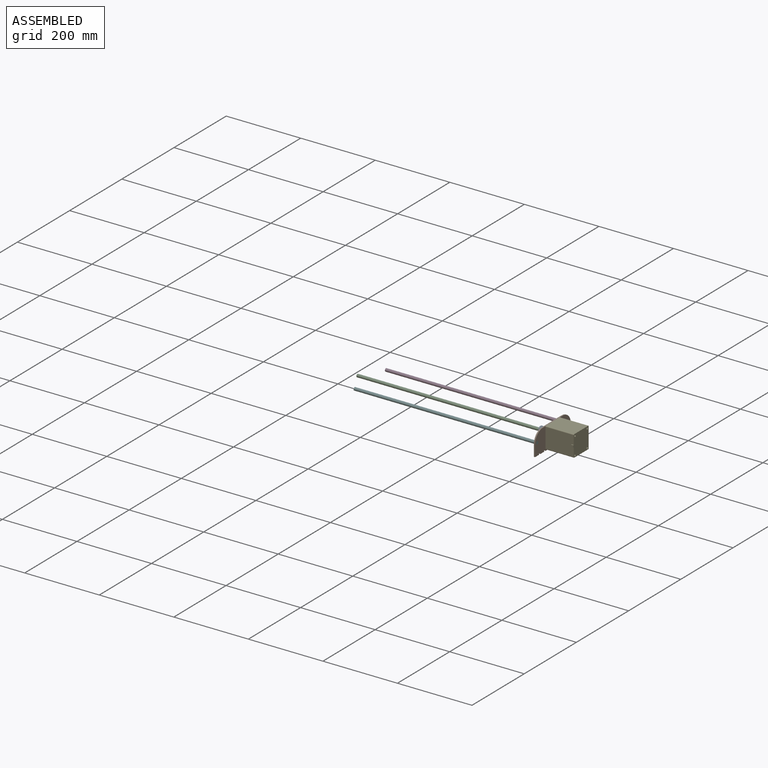
[diagram: assembled view]
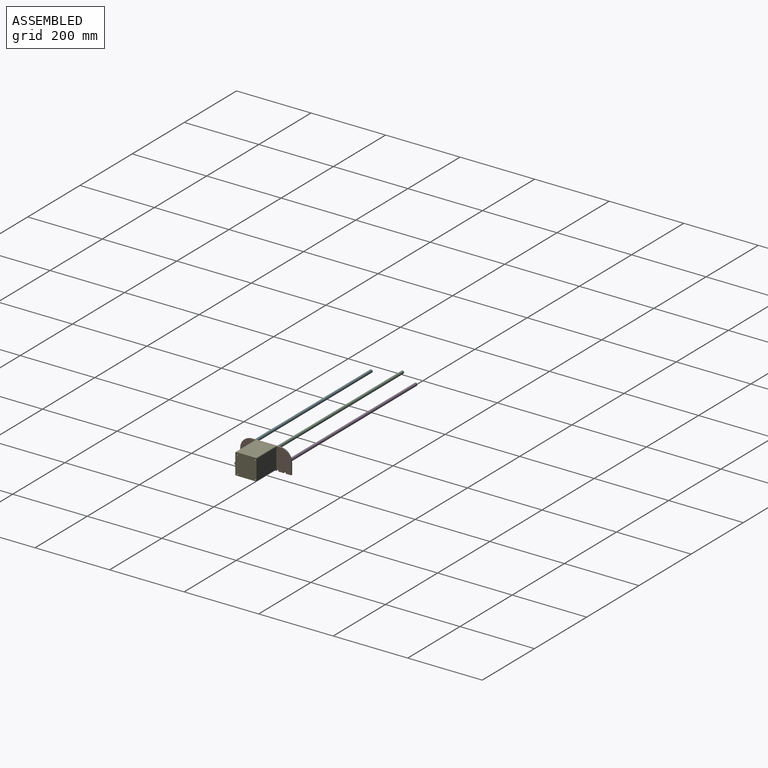
[diagram: assembled view, second angle]
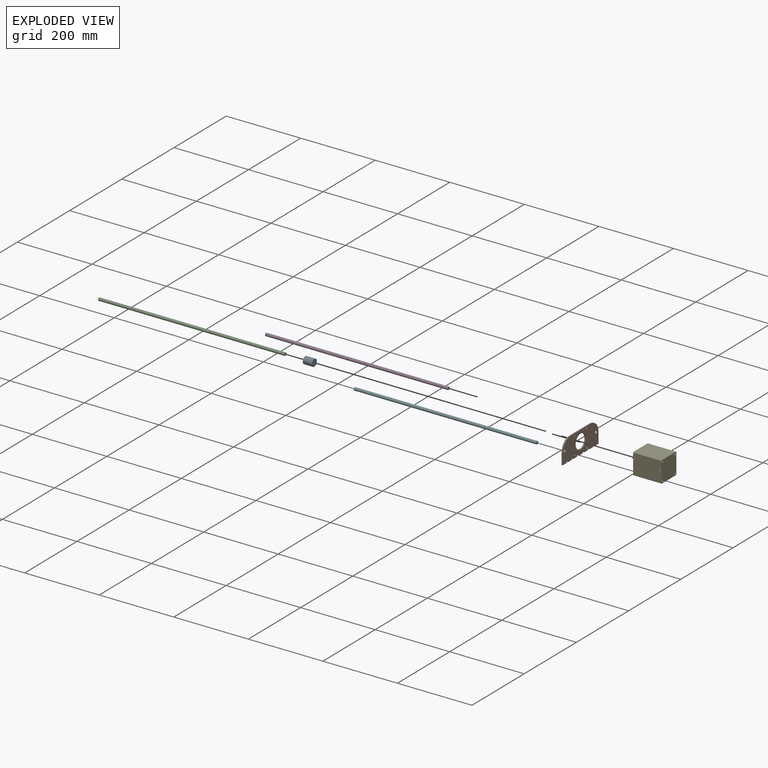
[diagram: exploded view]
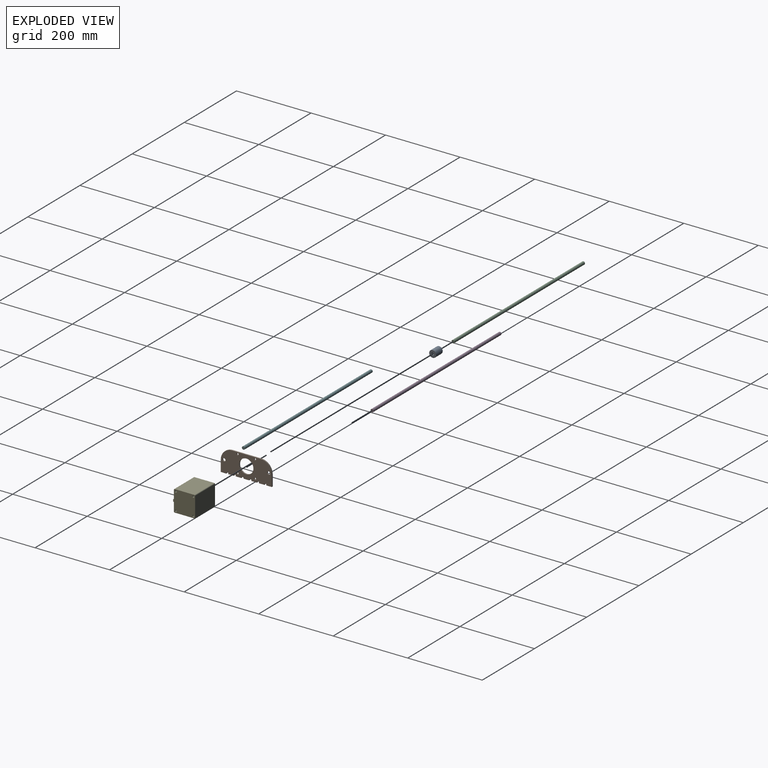
[diagram: exploded view, second angle]
ASSEMBLY  parts=6 mates=5
PART A: 12 faces, bbox 20.6x20.6x25 mm
  f0: cylinder r=9.5mm len=24.6mm, axis (0,0,-1), area 1468.4mm2, adj f10,f11
  f1: plane 18.6x18.6mm, normal (0,0,1), area 235.9mm2, adj f9,f11
  f2: plane 18.6x18.6mm, normal (0,0,-1), area 216.3mm2, adj f7,f10
  f3: cylinder r=3.17mm len=6.6mm, axis (0,0,1), area 131.7mm2, adj f6,f9
  f4: plane 7.6x7.6mm, normal (0,0,-1), area 9.6mm2, adj f6,f8
  f5: cylinder r=4mm len=17.6mm, axis (0,0,-1), area 442.3mm2, adj f7,f8
  f6: torus R=3.38mm, axis (0,0,-1), area 6.4mm2, adj f3,f4
  f7: torus R=4.2mm, axis (0,0,1), area 8mm2, adj f2,f5
  f8: torus R=3.8mm, axis (0,0,-1), area 7.8mm2, adj f4,f5
  f9: torus R=3.38mm, axis (0,0,1), area 6.4mm2, adj f1,f3
  f10: torus R=9.3mm, axis (0,0,1), area 18.6mm2, adj f0,f2
  f11: torus R=9.3mm, axis (0,0,1), area 18.6mm2, adj f0,f1
PART B: 39 faces, bbox 3.2x137x60.2 mm
  f0: plane 3.18x3.18mm, normal (0,1,0), area 10.1mm2, adj f1,f35,f37,f38
  f1: plane 5x3.18mm, normal (0,0,-1), area 15.9mm2, adj f0,f2,f37,f38
  f2: plane 3.18x3.18mm, normal (0,-1,0), area 10.1mm2, adj f1,f3,f37,f38
  f3: plane 15x3.18mm, normal (0,0,-1), area 47.6mm2, adj f2,f4,f37,f38
  f4: plane 3.18x3.18mm, normal (0,1,0), area 10.1mm2, adj f3,f5,f37,f38
  f5: plane 5x3.18mm, normal (0,0,-1), area 15.9mm2, adj f4,f6,f37,f38
  f6: plane 3.18x3.18mm, normal (0,-1,0), area 10.1mm2, adj f5,f7,f37,f38
  f7: plane 15x3.18mm, normal (0,0,-1), area 47.6mm2, adj f6,f8,f37,f38
  f8: plane 30.18x3.18mm, normal (0,1,0), area 95.8mm2, adj f7,f9,f37,f38
  f9: cylinder r=30mm len=30mm, axis (-1,0,0), area 149.6mm2, adj f8,f10,f37,f38
  f10: plane 77x3.18mm, normal (0,0,1), area 244.5mm2, adj f9,f11,f37,f38
  f11: cylinder r=30mm len=30mm, axis (-1,0,0), area 149.6mm2, adj f10,f12,f37,f38
  f12: plane 30.18x3.18mm, normal (0,-1,0), area 95.8mm2, adj f11,f13,f37,f38
  f13: plane 15x3.18mm, normal (0,0,-1), area 47.6mm2, adj f12,f14,f37,f38
  f14: plane 3.18x3.18mm, normal (0,1,0), area 10.1mm2, adj f13,f15,f37,f38
  f15: plane 5x3.18mm, normal (0,0,-1), area 15.9mm2, adj f14,f16,f37,f38
  f16: plane 3.18x3.18mm, normal (0,-1,0), area 10.1mm2, adj f15,f17,f37,f38
  f17: plane 15x3.18mm, normal (0,0,-1), area 47.6mm2, adj f16,f18,f37,f38
  f18: plane 3.18x3.18mm, normal (0,1,0), area 10.1mm2, adj f17,f19,f37,f38
  f19: plane 5x3.18mm, normal (0,0,-1), area 15.9mm2, adj f18,f20,f37,f38
  f20: plane 3.18x3.18mm, normal (0,-1,0), area 10.1mm2, adj f19,f21,f37,f38
  f21: plane 15x3.18mm, normal (0,0,-1), area 47.6mm2, adj f20,f22,f37,f38
  f22: plane 3.18x3.18mm, normal (0,1,0), area 10.1mm2, adj f21,f23,f37,f38
  f23: plane 6x3.18mm, normal (0,0,-1), area 19mm2, adj f22,f24,f37,f38
  f24: plane 3.18x3.18mm, normal (0,-1,0), area 10.1mm2, adj f23,f25,f37,f38
  f25: plane 15x3.18mm, normal (0,0,-1), area 47.6mm2, adj f24,f26,f37,f38
  f26: plane 3.18x3.18mm, normal (0,1,0), area 10.1mm2, adj f25,f27,f37,f38
  f27: plane 6x3.18mm, normal (0,0,-1), area 19mm2, adj f26,f28,f37,f38
  f28: plane 3.18x3.18mm, normal (0,-1,0), area 10.1mm2, adj f27,f35,f37,f38
  f29: cylinder r=2.55mm len=5.1mm, axis (-1,0,0), area 50.9mm2, adj f37,f38
  f30: cylinder r=2.55mm len=5.1mm, axis (-1,0,0), area 50.9mm2, adj f37,f38
  f31: cylinder r=2.55mm len=5.1mm, axis (-1,0,0), area 50.9mm2, adj f37,f38
  f32: cylinder r=2.55mm len=5.1mm, axis (-1,0,0), area 50.9mm2, adj f37,f38
  f33: cylinder r=4mm len=8mm, axis (-1,0,0), area 79.8mm2, adj f37,f38
  f34: cylinder r=4mm len=8mm, axis (-1,0,0), area 79.8mm2, adj f37,f38
  f35: plane 15x3.18mm, normal (0,0,-1), area 47.6mm2, adj f0,f28,f37,f38
  f36: cylinder r=19.05mm len=38.1mm, axis (-1,0,0), area 380mm2, adj f37,f38
  f37: plane 137x60.18mm, normal (1,0,0), area 6433.8mm2, adj f0,f1,f2,f3,f4,f5,f6,f7
  f38: plane 137x60.18mm, normal (-1,0,0), area 6433.8mm2, adj f0,f1,f2,f3,f4,f5,f6,f7
PART C: 3 faces, bbox 8x8x500 mm
  f0: cylinder r=4mm len=500mm, axis (0,0,-1), area 12566.4mm2, adj f1,f2
  f1: plane 8x8mm, normal (0,0,1), area 50.3mm2, adj f0
  f2: plane 8x8mm, normal (0,0,-1), area 50.3mm2, adj f0
PART D: 3 faces, bbox 8x8x490 mm
  f0: cylinder r=4mm len=490mm, axis (0,0,-1), area 12315mm2, adj f1,f2
  f1: plane 8x8mm, normal (0,0,1), area 50.3mm2, adj f0
  f2: plane 8x8mm, normal (0,0,-1), area 50.3mm2, adj f0
PART E: 26 faces, bbox 57x59x97 mm
  f0: plane 76x53mm, normal (0,-1,0), area 3992mm2, adj f1,f8,f12,f13,f22,f23,f24
  f1: cylinder r=2mm len=76mm, axis (0,0,-1), area 238.8mm2, adj f0,f2,f12,f13
  f2: plane 76x53mm, normal (1,0,0), area 4028mm2, adj f1,f3,f12,f13
  f3: cylinder r=2mm len=76mm, axis (0,0,-1), area 238.8mm2, adj f2,f4,f12,f13
  f4: plane 76x53mm, normal (0,1,0), area 4028mm2, adj f3,f5,f12,f13
  f5: cylinder r=2mm len=76mm, axis (0,0,-1), area 238.8mm2, adj f4,f6,f12,f13
  f6: plane 76x53mm, normal (-1,0,0), area 4028mm2, adj f5,f8,f12,f13
  f7: cylinder r=2.55mm len=76mm, axis (0,0,-1), area 1217.7mm2, adj f12,f13
  f8: cylinder r=2mm len=76mm, axis (0,0,-1), area 238.8mm2, adj f0,f6,f12,f13
  f9: cylinder r=2.55mm len=76mm, axis (0,0,-1), area 1217.7mm2, adj f12,f13
  f10: cylinder r=2.55mm len=76mm, axis (0,0,-1), area 1217.7mm2, adj f12,f13
  f11: cylinder r=2.55mm len=76mm, axis (0,0,-1), area 1217.7mm2, adj f12,f13
  f12: plane 57x57mm, normal (0,0,1), area 2026.8mm2, adj f0,f1,f2,f3,f4,f5,f6,f7
  f13: plane 59x57mm, normal (0,0,-1), area 3175.9mm2, adj f0,f1,f2,f3,f4,f5,f6,f7
  f14: cylinder r=4.5mm len=9mm, axis (0,0,-1), area 45.2mm2, adj f16,f17
  f15: cylinder r=19.02mm len=38.05mm, axis (0,0,-1), area 191.3mm2, adj f12,f16
  f16: plane 38.05x38.05mm, normal (0,0,1), area 1073.5mm2, adj f14,f15
  f17: plane 9x9mm, normal (0,0,1), area 31.9mm2, adj f14,f18
  f18: cylinder r=3.17mm len=21mm, axis (0,0,-1), area 364.7mm2, adj f17,f19,f20,f21
  f19: plane 6.35x5.85mm, normal (0,0,1), area 30.5mm2, adj f18,f20
  f20: plane 15x3.42mm, normal (0,1,0), area 51.3mm2, adj f18,f19,f21
  f21: plane 3.42x0.5mm, normal (0,0,1), area 1.2mm2, adj f18,f20
  f22: plane 6x2mm, normal (1,0,0), area 12mm2, adj f0,f13,f23,f25
  f23: plane 6x2mm, normal (0,0,1), area 12mm2, adj f0,f22,f24,f25
  f24: plane 6x2mm, normal (-1,0,0), area 12mm2, adj f0,f13,f23,f25
  f25: plane 6x6mm, normal (0,-1,0), area 36mm2, adj f13,f22,f23,f24
PART F: same geometry as D
PLACE A rot(axis=(0,1,0),90deg) t=(-48.49,-11.59,-1.45)mm
PLACE B t=(-18.16,-11.59,-1.45)mm
PLACE C rot(axis=(0,-1,0),90deg) t=(-39.49,-11.59,-1.45)mm
PLACE D rot(axis=(0,-1,0),90deg) t=(-14.99,48.41,-1.45)mm
PLACE E rot(axis=(0,-1,0),90deg) t=(61.01,-11.59,-1.45)mm
PLACE F rot(axis=(0,-1,0),90deg) t=(-14.99,-71.59,-1.45)mm
MATE fastened D.f0 <-> B.f34  axis (1,0,0) through (-14.99,48.41,-1.45)mm
MATE fastened F.f0 <-> B.f33  axis (1,0,0) through (-14.99,-71.59,-1.45)mm
MATE fastened E.f14 <-> B.f36  axis (-1,0,0) through (-14.99,-11.59,-1.45)mm
MATE fastened A.f0 <-> E.f14  axis (-1,0,0) through (-35.99,-11.59,-1.45)mm
MATE fastened C.f0 <-> A.f5  axis (1,0,0) through (-39.49,-11.59,-1.45)mm
